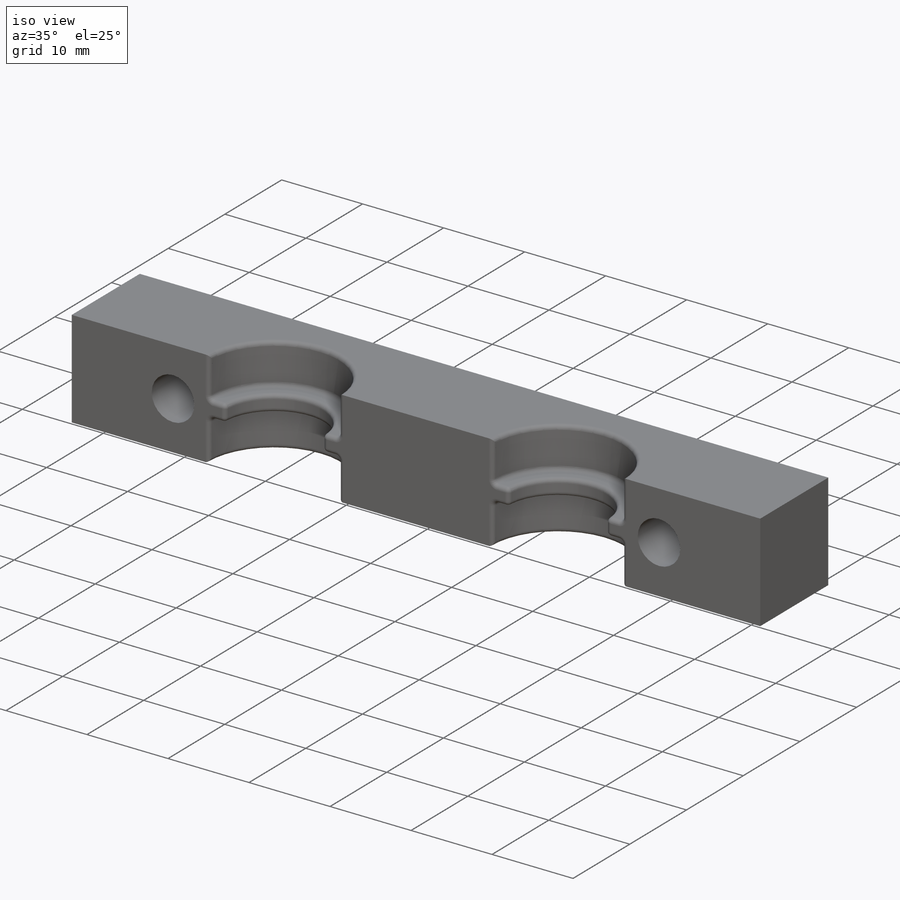
[diagram: iso view]
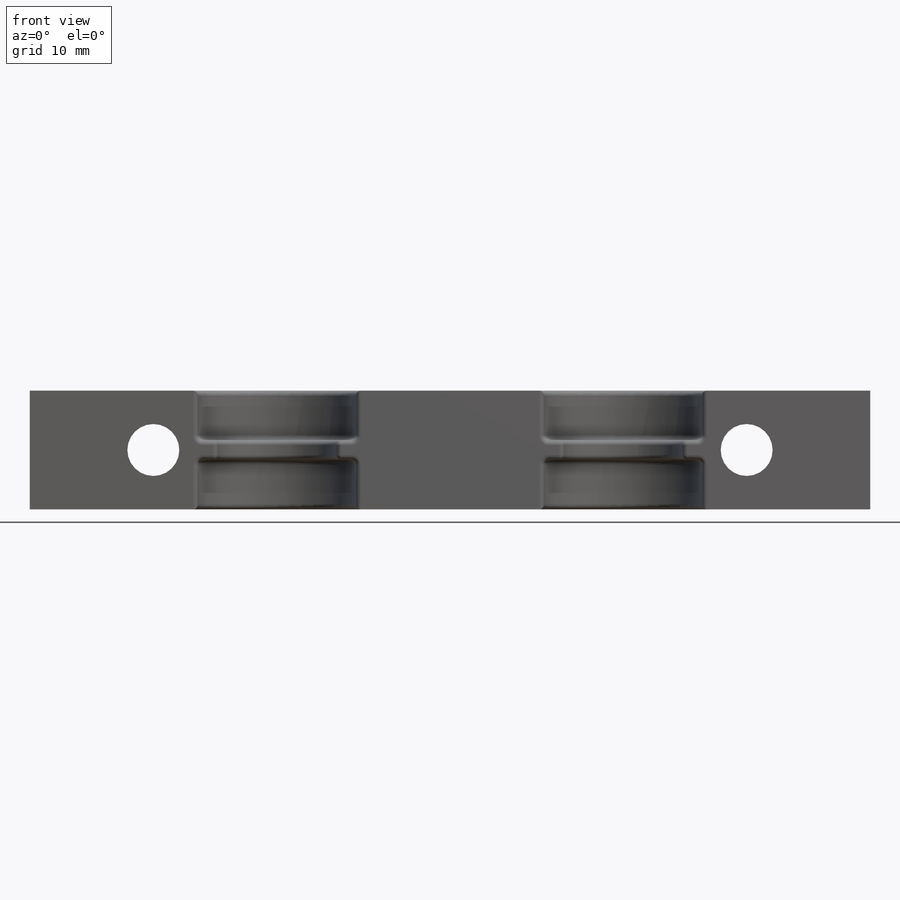
[diagram: front view]
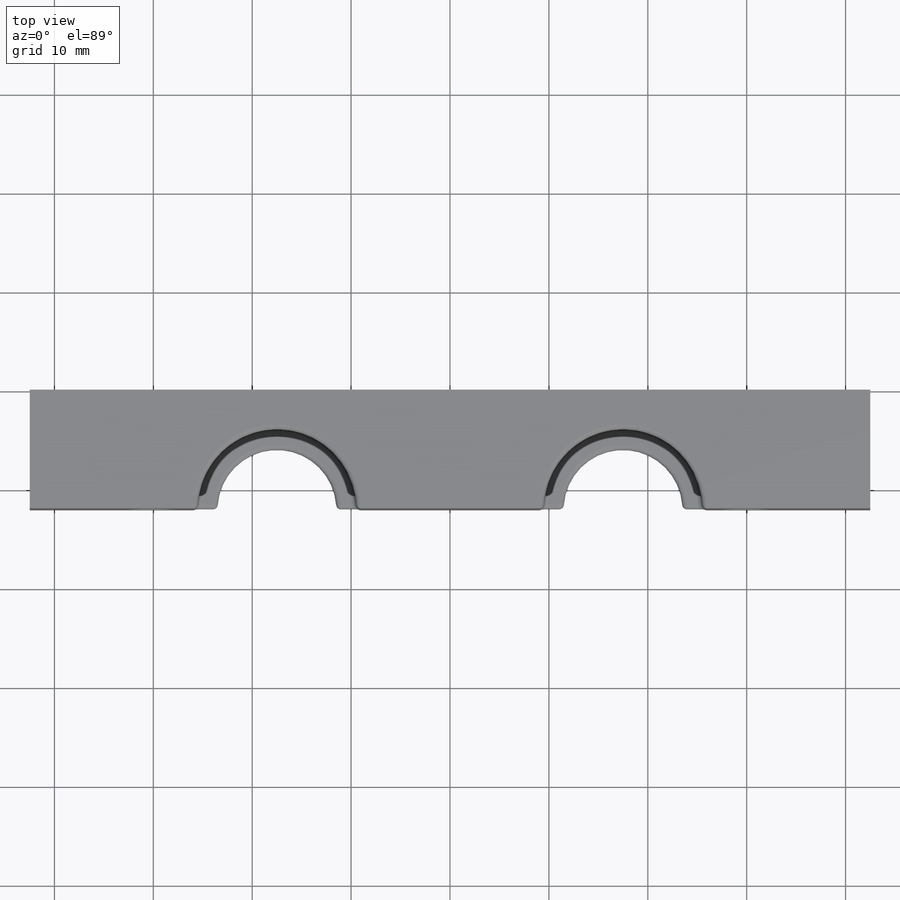
[diagram: top view]
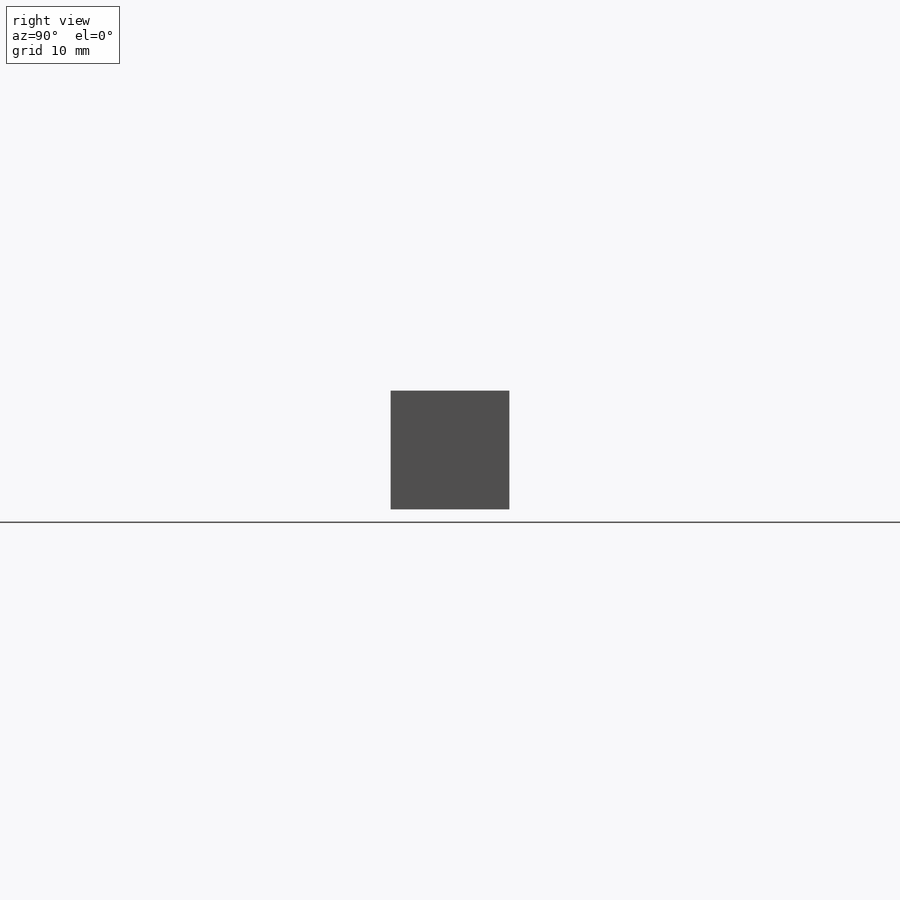
[diagram: right view]
SOLIDWORKS PART (.sldprt)
format: sldprt  version: not decoded by parser v0  size: 369,664 bytes
history: native  units: mm
features: sketch x5, cut_extrude x4, material x1, extrude x1, fillet x1 (+13 scaffold rows collapsed)
feature tree (25):
  scaffold x13  (default folders/planes/origin — collapsed)
  material  "Material <not specified>"
  sketch  "Sketch1"  dims[D1=85.0mm D2=12.0mm]
  extrude  "Boss-Extrude1"  Depth=12mm
  sketch  "Sketch2"  dims[D1=16.0mm D2=16.0mm D3=25.0mm D4=25.0mm]
  cut_extrude  "Cut-Extrude2"  Depth=5mm
  sketch  "Sketch3"  dims[D1=16.0mm D2=16.0mm D3=25.0mm D4=25.0mm]
  cut_extrude  "Cut-Extrude3"  Depth=5mm
  sketch  "Sketch4"  dims[D1=12.0mm D2=12.0mm]
  cut_extrude  "Cut-Extrude4"  Depth=5mm
  sketch  "Sketch5"  dims[D3=5.25mm D4=5.25mm D1=12.5mm D2=12.5mm D5=60.0mm]
  cut_extrude  "Cut-Extrude6"  [1 undecoded]
  fillet  "Fillet1"  Radius=0.5mm
decode coverage: 10 of 11 modeling features carry decoded parameters
note: 1 parameter value undecoded
note: suppression state not decoded; provenance and decode notes live in map.json
